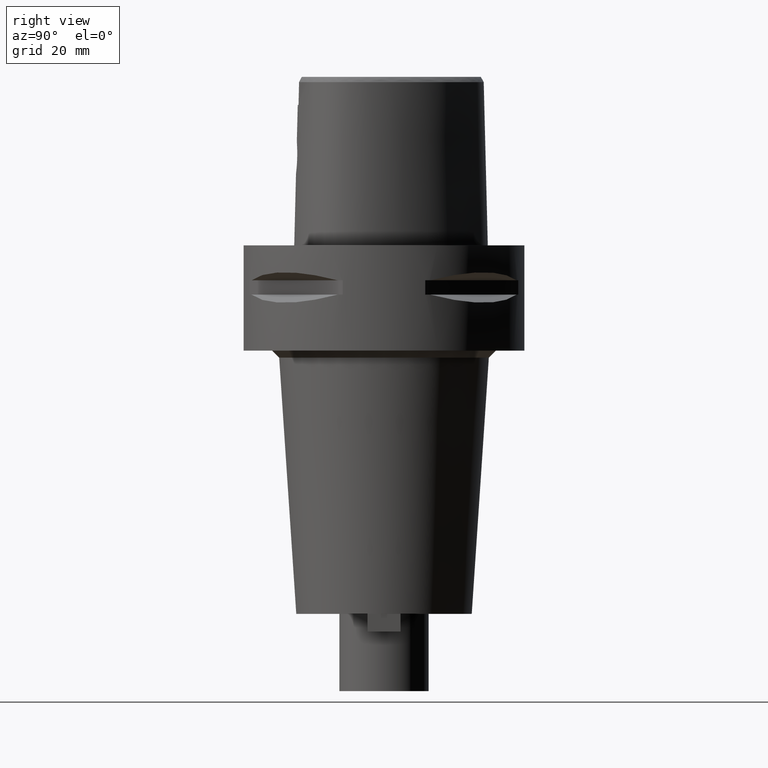
[diagram: clean part render]
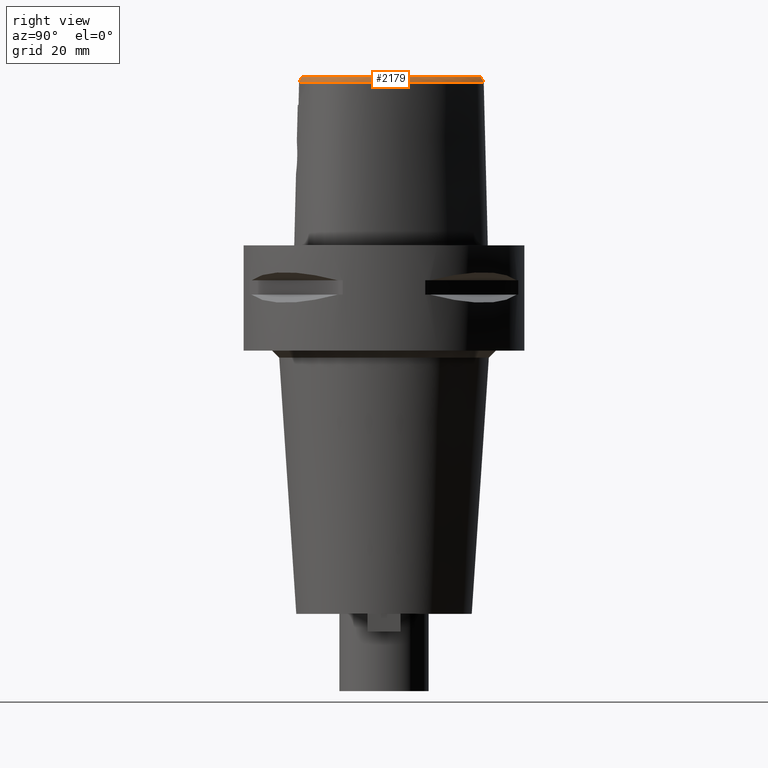
[diagram: same view with one face highlighted and labeled with its STEP entity id]
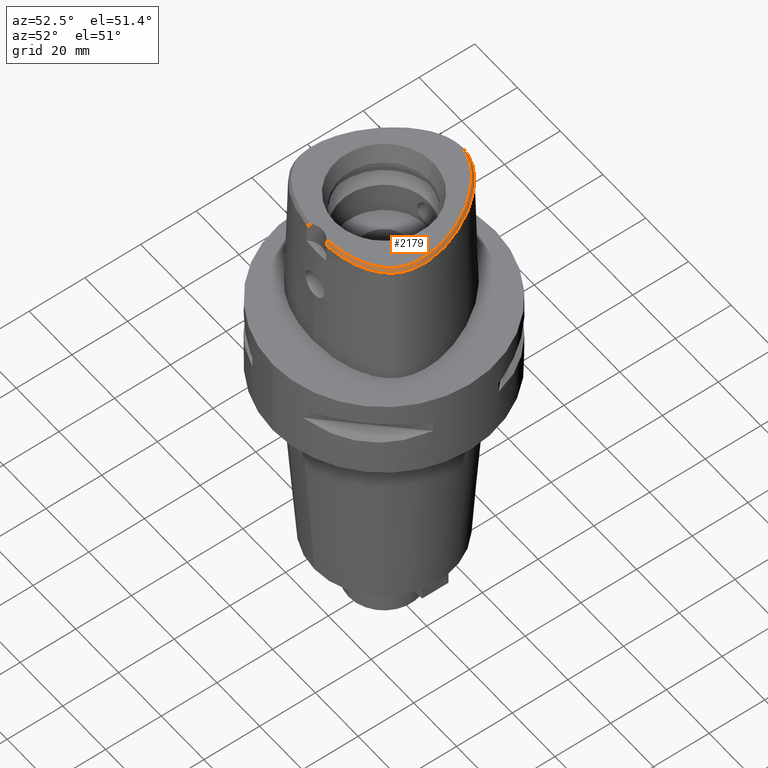
[diagram: same view with one face highlighted and labeled with its STEP entity id]
A machine part, right view. The second image highlights one B-rep face of the part: STEP entity #2179.
A second angle (auxiliary view) of the same face is appended — the face is thin or edge-on in the first view.
In plain terms, the highlighted face is a freeform B-spline surface patch.
Its self-contained STEP definition (entity closure, byte-faithful):
#65=CARTESIAN_POINT('',(-2.553408000999E-11,2.758331912251E1,4.8E1));
#70=CARTESIAN_POINT('',(-2.553408000999E-11,2.758331912251E1,4.8E1));
#71=CARTESIAN_POINT('',(4.308199591757E-1,2.758331912251E1,4.8E1));
#72=CARTESIAN_POINT('',(1.312581836386E0,2.753695819930E1,4.8E1));
#73=CARTESIAN_POINT('',(2.682052013070E0,2.732050191949E1,4.8E1));
#74=CARTESIAN_POINT('',(4.139025301734E0,2.693741277961E1,4.8E1));
#75=CARTESIAN_POINT('',(5.702132662746E0,2.635570228205E1,4.8E1));
#76=CARTESIAN_POINT('',(7.314111567124E0,2.557334069959E1,4.8E1));
#77=CARTESIAN_POINT('',(8.899897127761E0,2.462860894234E1,4.8E1));
#78=CARTESIAN_POINT('',(1.049350346487E1,2.350529025779E1,4.8E1));
#79=CARTESIAN_POINT('',(1.208714782739E1,2.220220708573E1,4.8E1));
#80=CARTESIAN_POINT('',(1.370807430618E1,2.068813656024E1,4.8E1));
#81=CARTESIAN_POINT('',(1.543422688583E1,1.885056713304E1,4.8E1));
#82=CARTESIAN_POINT('',(1.726772707219E1,1.661439195704E1,4.8E1));
#83=CARTESIAN_POINT('',(1.919908151861E1,1.387615070263E1,4.8E1));
#84=CARTESIAN_POINT('',(2.102577481567E1,1.081223261475E1,4.8E1));
#85=CARTESIAN_POINT('',(2.257155986932E1,7.689909778679E0,4.8E1));
#86=CARTESIAN_POINT('',(2.370836484248E1,4.888857081560E0,4.8E1));
#87=CARTESIAN_POINT('',(2.453018117142E1,2.390728156132E0,4.8E1));
#88=CARTESIAN_POINT('',(2.511007617668E1,1.379620702220E-1,4.8E1));
#89=CARTESIAN_POINT('',(2.550360072510E1,-1.955045901456E0,4.8E1));
#90=CARTESIAN_POINT('',(2.573370153040E1,-3.927409804008E0,4.8E1));
#91=CARTESIAN_POINT('',(2.581232238187E1,-5.799977111255E0,4.8E1));
#92=CARTESIAN_POINT('',(2.573966879691E1,-7.615151613845E0,4.8E1));
#93=CARTESIAN_POINT('',(2.551132514208E1,-9.325599270871E0,4.8E1));
#94=CARTESIAN_POINT('',(2.515342956191E1,-1.084492771808E1,4.8E1));
#95=CARTESIAN_POINT('',(2.468972595030E1,-1.219232098666E1,4.8E1));
#96=CARTESIAN_POINT('',(2.413025494716E1,-1.340053413374E1,4.8E1));
#97=CARTESIAN_POINT('',(2.346597589741E1,-1.451144789545E1,4.8E1));
#98=CARTESIAN_POINT('',(2.265398450606E1,-1.559540719476E1,4.8E1));
#99=CARTESIAN_POINT('',(2.166328740391E1,-1.666968978043E1,4.8E1));
#100=CARTESIAN_POINT('',(2.046665217620E1,-1.773324176249E1,4.8E1));
#101=CARTESIAN_POINT('',(1.903871263259E1,-1.877242211813E1,4.8E1));
#102=CARTESIAN_POINT('',(1.746616294721E1,-1.971268165060E1,4.8E1));
#103=CARTESIAN_POINT('',(1.576783714836E1,-2.055384398428E1,4.8E1));
#104=CARTESIAN_POINT('',(1.389651508096E1,-2.131702749288E1,4.8E1));
#105=CARTESIAN_POINT('',(1.183770415169E1,-2.199699532051E1,4.8E1));
#106=CARTESIAN_POINT('',(9.512960590606E0,-2.259887796156E1,4.8E1));
#107=CARTESIAN_POINT('',(6.838891179295E0,-2.310569037846E1,4.8E1));
#108=CARTESIAN_POINT('',(4.761191900107E0,-2.335214347967E1,4.8E1));
#109=CARTESIAN_POINT('',(3.652533226355E0,-2.343985283522E1,4.8E1));
#130=CARTESIAN_POINT('',(4.472216720977E0,-2.420009030094E1,4.652069014669E1));
#131=CARTESIAN_POINT('',(4.386385547011E0,-2.410412423164E1,4.670580948399E1));
#132=CARTESIAN_POINT('',(4.210543296964E0,-2.391997034542E1,4.706226501888E1));
#133=CARTESIAN_POINT('',(3.936996790985E0,-2.366730198003E1,4.755426598097E1));
#134=CARTESIAN_POINT('',(3.748173387403E0,-2.351323898357E1,4.785595189639E1));
#135=CARTESIAN_POINT('',(3.652533226355E0,-2.343985283522E1,4.8E1));
#140=CARTESIAN_POINT('',(-1.302368180590E-11,2.841206021535E1,
4.652071719451E1));
#141=CARTESIAN_POINT('',(4.645619623630E-1,2.841206021535E1,4.652071719450E1));
#142=CARTESIAN_POINT('',(1.392502708434E0,2.836337346288E1,4.652069269990E1));
#143=CARTESIAN_POINT('',(2.867520768382E0,2.813061406034E1,4.652071971733E1));
#144=CARTESIAN_POINT('',(4.418705802249E0,2.771997017901E1,4.652071663814E1));
#145=CARTESIAN_POINT('',(6.081525874425E0,2.709739880987E1,4.652072321715E1));
#146=CARTESIAN_POINT('',(7.809298435834E0,2.625044109545E1,4.652072243178E1));
#147=CARTESIAN_POINT('',(9.500538491540E0,2.522854108653E1,4.652071412197E1));
#148=CARTESIAN_POINT('',(1.118805322731E1,2.401948220279E1,4.652072261176E1));
#149=CARTESIAN_POINT('',(1.287219481621E1,2.261728156789E1,4.652071219837E1));
#150=CARTESIAN_POINT('',(1.459187582841E1,2.097731612638E1,4.652072230454E1));
#151=CARTESIAN_POINT('',(1.642654525592E1,1.897561835833E1,4.652070927404E1));
#152=CARTESIAN_POINT('',(1.837645554419E1,1.652254435811E1,4.652071899019E1));
#153=CARTESIAN_POINT('',(2.038503692951E1,1.356185686629E1,4.652071067698E1));
#154=CARTESIAN_POINT('',(2.222233942622E1,1.033005116791E1,4.652072937480E1));
#155=CARTESIAN_POINT('',(2.370916176152E1,7.156982117323E0,4.652068374576E1));
#156=CARTESIAN_POINT('',(2.478454783464E1,4.337662873146E0,4.652071733334E1));
#157=CARTESIAN_POINT('',(2.555741027749E1,1.803493345081E0,4.652071594027E1));
#158=CARTESIAN_POINT('',(2.609389676851E1,-5.073252425559E-1,4.652071690415E1));
#159=CARTESIAN_POINT('',(2.643898208359E1,-2.657292841212E0,4.652071531138E1));
#160=CARTESIAN_POINT('',(2.661562683198E1,-4.698641813486E0,4.652072592609E1));
#161=CARTESIAN_POINT('',(2.662930437472E1,-6.674399034016E0,4.652071331646E1));
#162=CARTESIAN_POINT('',(2.647088562175E1,-8.576416346751E0,4.652071929100E1));
#163=CARTESIAN_POINT('',(2.615694922710E1,-1.029143805928E1,4.652071482432E1));
#164=CARTESIAN_POINT('',(2.571696366411E1,-1.181546170948E1,4.652072314895E1));
#165=CARTESIAN_POINT('',(2.516704275048E1,-1.317922011349E1,4.652069754860E1));
#166=CARTESIAN_POINT('',(2.450914806127E1,-1.441901759393E1,4.652073254790E1));
#167=CARTESIAN_POINT('',(2.371577419028E1,-1.559216066951E1,4.652071091329E1));
#168=CARTESIAN_POINT('',(2.274797080795E1,-1.674581535720E1,4.652072388009E1));
#169=CARTESIAN_POINT('',(2.157714828554E1,-1.788362583840E1,4.652071935418E1));
#170=CARTESIAN_POINT('',(2.016761294318E1,-1.900457313678E1,4.652071782287E1));
#171=CARTESIAN_POINT('',(1.853608054765E1,-2.006334488107E1,4.652071674248E1));
#172=CARTESIAN_POINT('',(1.677914191169E1,-2.099877065793E1,4.652072007015E1));
#173=CARTESIAN_POINT('',(1.486255682303E1,-2.183761990880E1,4.652071537281E1));
#174=CARTESIAN_POINT('',(1.275852358118E1,-2.258416069392E1,4.652071952665E1));
#175=CARTESIAN_POINT('',(1.040614472909E1,-2.324250465365E1,4.652070533636E1));
#176=CARTESIAN_POINT('',(7.710151685436E0,-2.380512738152E1,4.652074681345E1));
#177=CARTESIAN_POINT('',(5.595748779639E0,-2.409253946985E1,4.652064871827E1));
#178=CARTESIAN_POINT('',(4.472216720977E0,-2.420009030094E1,4.652069014669E1));
#236=DIRECTION('',(-7.378115598628E-12,-4.887572309465E-1,8.724198353989E-1));
#237=VECTOR('',#236,1.695608863382E0);
#238=CARTESIAN_POINT('',(-1.302368180590E-11,2.841206021535E1,
4.652071719451E1));
#239=LINE('',#238,#237);
#1656=CARTESIAN_POINT('',(3.652533226356E0,-2.343985283522E1,4.8E1));
#1658=VERTEX_POINT('',#1656);
#1660=VERTEX_POINT('',#65);
#1665=VERTEX_POINT('',#130);
#1670=CARTESIAN_POINT('',(-1.302368180590E-11,2.841206021535E1,
4.652071719451E1));
#1671=VERTEX_POINT('',#1670);
#1894=CARTESIAN_POINT('',(2.876865472607E0,-2.337149101217E1,4.821924192607E1));
#1895=CARTESIAN_POINT('',(2.899078398782E0,-2.372893799313E1,4.757997728267E1));
#1896=CARTESIAN_POINT('',(2.921291324956E0,-2.408638497409E1,4.694071263928E1));
#1897=CARTESIAN_POINT('',(2.943504251131E0,-2.444383195504E1,4.630144799588E1));
#1898=CARTESIAN_POINT('',(3.133187733782E0,-2.335556125866E1,4.821924191161E1));
#1899=CARTESIAN_POINT('',(3.157406757150E0,-2.371288358660E1,4.757997731037E1));
#1900=CARTESIAN_POINT('',(3.181625780519E0,-2.407020591454E1,4.694071270913E1));
#1901=CARTESIAN_POINT('',(3.205844803888E0,-2.442752824248E1,4.630144810788E1));
#1902=CARTESIAN_POINT('',(3.431216515783E0,-2.333451357155E1,4.821924189874E1));
#1903=CARTESIAN_POINT('',(3.457780534314E0,-2.369167041996E1,4.757997733502E1));
#1904=CARTESIAN_POINT('',(3.484344552846E0,-2.404882726838E1,4.694071277130E1));
#1905=CARTESIAN_POINT('',(3.510908571377E0,-2.440598411679E1,4.630144820757E1));
#1906=CARTESIAN_POINT('',(4.347262932340E0,-2.326073767731E1,4.821924188083E1));
#1907=CARTESIAN_POINT('',(4.381087236337E0,-2.361730993973E1,4.757997736933E1));
#1908=CARTESIAN_POINT('',(4.414911540335E0,-2.397388220215E1,4.694071285784E1));
#1909=CARTESIAN_POINT('',(4.448735844332E0,-2.433045446457E1,4.630144834635E1));
#1910=CARTESIAN_POINT('',(5.613021169354E0,-2.313029656539E1,4.821924192790E1));
#1911=CARTESIAN_POINT('',(5.657046247524E0,-2.348582161817E1,4.757997727915E1));
#1912=CARTESIAN_POINT('',(5.701071325695E0,-2.384134667095E1,4.694071263040E1));
#1913=CARTESIAN_POINT('',(5.745096403866E0,-2.419687172374E1,4.630144798165E1));
#1914=CARTESIAN_POINT('',(7.375980070284E0,-2.287364570690E1,4.821924212338E1));
#1915=CARTESIAN_POINT('',(7.434885865289E0,-2.322701279293E1,4.757997690465E1));
#1916=CARTESIAN_POINT('',(7.493791660293E0,-2.358037987896E1,4.694071168591E1));
#1917=CARTESIAN_POINT('',(7.552697455297E0,-2.393374696498E1,4.630144646717E1));
#1918=CARTESIAN_POINT('',(9.054324431617E0,-2.255625573191E1,4.821924211439E1));
#1919=CARTESIAN_POINT('',(9.128217702130E0,-2.290679847186E1,4.757997692188E1));
#1920=CARTESIAN_POINT('',(9.202110972642E0,-2.325734121182E1,4.694071172937E1));
#1921=CARTESIAN_POINT('',(9.276004243155E0,-2.360788395178E1,4.630144653685E1));
#1922=CARTESIAN_POINT('',(1.063841157544E1,-2.218558097237E1,4.821924211499E1));
#1923=CARTESIAN_POINT('',(1.072738200012E1,-2.253260750696E1,4.757997692074E1));
#1924=CARTESIAN_POINT('',(1.081635242480E1,-2.287963404154E1,4.694071172649E1));
#1925=CARTESIAN_POINT('',(1.090532284948E1,-2.322666057612E1,4.630144653224E1));
#1926=CARTESIAN_POINT('',(1.212111347020E1,-2.176955447228E1,4.821924206553E1));
#1927=CARTESIAN_POINT('',(1.222527351137E1,-2.211233262496E1,4.757997701547E1));
#1928=CARTESIAN_POINT('',(1.232943355255E1,-2.245511077765E1,4.694071196541E1));
#1929=CARTESIAN_POINT('',(1.243359359372E1,-2.279788893034E1,4.630144691535E1));
#1930=CARTESIAN_POINT('',(1.349993485179E1,-2.131563305250E1,4.821924207040E1));
#1931=CARTESIAN_POINT('',(1.361935339704E1,-2.165340334127E1,4.757997700615E1));
#1932=CARTESIAN_POINT('',(1.373877194229E1,-2.199117363004E1,4.694071194191E1));
#1933=CARTESIAN_POINT('',(1.385819048755E1,-2.232894391880E1,4.630144687766E1));
#1934=CARTESIAN_POINT('',(1.477354171243E1,-2.083132226179E1,4.821924211509E1));
#1935=CARTESIAN_POINT('',(1.490829926046E1,-2.116327668184E1,4.757997692054E1));
#1936=CARTESIAN_POINT('',(1.504305680850E1,-2.149523110190E1,4.694071172600E1));
#1937=CARTESIAN_POINT('',(1.517781435654E1,-2.182718552196E1,4.630144653146E1));
#1938=CARTESIAN_POINT('',(1.594530244778E1,-2.032249761907E1,4.821924205661E1));
#1939=CARTESIAN_POINT('',(1.609541730429E1,-2.064780140472E1,4.757997703257E1));
#1940=CARTESIAN_POINT('',(1.624553216081E1,-2.097310519037E1,4.694071200853E1));
#1941=CARTESIAN_POINT('',(1.639564701732E1,-2.129840897602E1,4.630144698449E1));
#1942=CARTESIAN_POINT('',(1.701874935635E1,-1.979480077442E1,4.821924211382E1));
#1943=CARTESIAN_POINT('',(1.718420738125E1,-2.011258215142E1,4.757997692296E1));
#1944=CARTESIAN_POINT('',(1.734966540616E1,-2.043036352842E1,4.694071173210E1));
#1945=CARTESIAN_POINT('',(1.751512343106E1,-2.074814490542E1,4.630144654123E1));
#1946=CARTESIAN_POINT('',(1.799822484169E1,-1.925314343333E1,4.821924207755E1));
#1947=CARTESIAN_POINT('',(1.817898403924E1,-1.956248420904E1,4.757997699244E1));
#1948=CARTESIAN_POINT('',(1.835974323678E1,-1.987182498475E1,4.694071190734E1));
#1949=CARTESIAN_POINT('',(1.854050243433E1,-2.018116576046E1,4.630144682223E1));
#1950=CARTESIAN_POINT('',(1.889060235258E1,-1.870061011600E1,4.821924199625E1));
#1951=CARTESIAN_POINT('',(1.908651762080E1,-1.900058821514E1,4.757997714820E1));
#1952=CARTESIAN_POINT('',(1.928243288902E1,-1.930056631428E1,4.694071230016E1));
#1953=CARTESIAN_POINT('',(1.947834815724E1,-1.960054441342E1,4.630144745211E1));
#1954=CARTESIAN_POINT('',(1.970113372716E1,-1.814056768710E1,4.821924206169E1));
#1955=CARTESIAN_POINT('',(1.991201387568E1,-1.843022914435E1,4.757997702283E1));
#1956=CARTESIAN_POINT('',(2.012289402420E1,-1.871989060160E1,4.694071198397E1));
#1957=CARTESIAN_POINT('',(2.033377417272E1,-1.900955205885E1,4.630144694511E1));
#1958=CARTESIAN_POINT('',(2.043517118394E1,-1.757572592258E1,4.821924213720E1));
#1959=CARTESIAN_POINT('',(2.066076034804E1,-1.785409269154E1,4.757997687816E1));
#1960=CARTESIAN_POINT('',(2.088634951214E1,-1.813245946051E1,4.694071161912E1));
#1961=CARTESIAN_POINT('',(2.111193867623E1,-1.841082622947E1,4.630144636008E1));
#1962=CARTESIAN_POINT('',(2.109916706154E1,-1.700724434365E1,4.821924213646E1));
#1963=CARTESIAN_POINT('',(2.133910656843E1,-1.727334886298E1,4.757997687958E1));
#1964=CARTESIAN_POINT('',(2.157904607532E1,-1.753945338231E1,4.694071162271E1));
#1965=CARTESIAN_POINT('',(2.181898558221E1,-1.780555790163E1,4.630144636583E1));
#1966=CARTESIAN_POINT('',(2.169890433641E1,-1.643590249734E1,4.821924212445E1));
#1967=CARTESIAN_POINT('',(2.195275526367E1,-1.668877861367E1,4.757997690259E1));
#1968=CARTESIAN_POINT('',(2.220660619094E1,-1.694165473E1,4.694071168072E1));
#1969=CARTESIAN_POINT('',(2.246045711821E1,-1.719453084633E1,4.630144645886E1));
#1970=CARTESIAN_POINT('',(2.223935527357E1,-1.586234623381E1,4.821924210205E1));
#1971=CARTESIAN_POINT('',(2.250659044937E1,-1.610104201791E1,4.757997694553E1));
#1972=CARTESIAN_POINT('',(2.277382562518E1,-1.633973780200E1,4.694071178901E1));
#1973=CARTESIAN_POINT('',(2.304106080099E1,-1.657843358610E1,4.630144663249E1));
#1974=CARTESIAN_POINT('',(2.272569588475E1,-1.528605546547E1,4.821924204602E1));
#1975=CARTESIAN_POINT('',(2.300569031208E1,-1.550965506923E1,4.757997705287E1));
#1976=CARTESIAN_POINT('',(2.328568473940E1,-1.573325467300E1,4.694071205972E1));
#1977=CARTESIAN_POINT('',(2.356567916673E1,-1.595685427677E1,4.630144706657E1));
#1978=CARTESIAN_POINT('',(2.316209855810E1,-1.470661306729E1,4.821924213456E1));
#1979=CARTESIAN_POINT('',(2.345413060733E1,-1.491425055732E1,4.757997688324E1));
#1980=CARTESIAN_POINT('',(2.374616265656E1,-1.512188804735E1,4.694071163191E1));
#1981=CARTESIAN_POINT('',(2.403819470579E1,-1.532952553737E1,4.630144638059E1));
#1982=CARTESIAN_POINT('',(2.355140410734E1,-1.412451654939E1,4.821924214834E1));
#1983=CARTESIAN_POINT('',(2.385467985486E1,-1.431536853290E1,4.757997685684E1));
#1984=CARTESIAN_POINT('',(2.415795560238E1,-1.450622051641E1,4.694071156533E1));
#1985=CARTESIAN_POINT('',(2.446123134990E1,-1.469707249992E1,4.630144627382E1));
#1986=CARTESIAN_POINT('',(2.389949282158E1,-1.353450441815E1,4.821924208794E1));
#1987=CARTESIAN_POINT('',(2.421319718401E1,-1.370768290853E1,4.757997697255E1));
#1988=CARTESIAN_POINT('',(2.452690154644E1,-1.388086139891E1,4.694071185716E1));
#1989=CARTESIAN_POINT('',(2.484060590887E1,-1.405403988929E1,4.630144674177E1));
#1990=CARTESIAN_POINT('',(2.421718278414E1,-1.291889838151E1,4.821924218176E1));
#1991=CARTESIAN_POINT('',(2.454017337214E1,-1.307405708076E1,4.757997679282E1));
#1992=CARTESIAN_POINT('',(2.486316396014E1,-1.322921578001E1,4.694071140387E1));
#1993=CARTESIAN_POINT('',(2.518615454814E1,-1.338437447926E1,4.630144601493E1));
#1994=CARTESIAN_POINT('',(2.450962268473E1,-1.226455699837E1,4.821924204936E1));
#1995=CARTESIAN_POINT('',(2.484079114997E1,-1.240138576770E1,4.757997704645E1));
#1996=CARTESIAN_POINT('',(2.517195961520E1,-1.253821453702E1,4.694071204354E1));
#1997=CARTESIAN_POINT('',(2.550312808043E1,-1.267504330635E1,4.630144704062E1));
#1998=CARTESIAN_POINT('',(2.477496253345E1,-1.156934535207E1,4.821924208235E1));
#1999=CARTESIAN_POINT('',(2.511319366649E1,-1.168762961672E1,4.757997698324E1));
#2000=CARTESIAN_POINT('',(2.545142479954E1,-1.180591388137E1,4.694071188413E1));
#2001=CARTESIAN_POINT('',(2.578965593259E1,-1.192419814602E1,4.630144678502E1));
#2002=CARTESIAN_POINT('',(2.501145273104E1,-1.083010996763E1,4.821924212060E1));
#2003=CARTESIAN_POINT('',(2.535564010322E1,-1.092972414145E1,4.757997690998E1));
#2004=CARTESIAN_POINT('',(2.569982747540E1,-1.102933831527E1,4.694071169936E1));
#2005=CARTESIAN_POINT('',(2.604401484758E1,-1.112895248909E1,4.630144648874E1));
#2006=CARTESIAN_POINT('',(2.521716726115E1,-1.004223734416E1,4.821924213293E1));
#2007=CARTESIAN_POINT('',(2.556621300495E1,-1.012317544606E1,4.757997688637E1));
#2008=CARTESIAN_POINT('',(2.591525874874E1,-1.020411354795E1,4.694071163981E1));
#2009=CARTESIAN_POINT('',(2.626430449253E1,-1.028505164985E1,4.630144639325E1));
#2010=CARTESIAN_POINT('',(2.538936957784E1,-9.201410958426E0,4.821924214049E1));
#2011=CARTESIAN_POINT('',(2.574220689498E1,-9.263746756797E0,4.757997687188E1));
#2012=CARTESIAN_POINT('',(2.609504421212E1,-9.326082555169E0,4.694071160328E1));
#2013=CARTESIAN_POINT('',(2.644788152927E1,-9.388418353541E0,4.630144633467E1));
#2014=CARTESIAN_POINT('',(2.552463080862E1,-8.303468521901E0,4.821924209795E1));
#2015=CARTESIAN_POINT('',(2.588022882300E1,-8.347351146916E0,4.757997695338E1));
#2016=CARTESIAN_POINT('',(2.623582683737E1,-8.391233771930E0,4.694071180880E1));
#2017=CARTESIAN_POINT('',(2.659142485174E1,-8.435116396944E0,4.630144666423E1));
#2018=CARTESIAN_POINT('',(2.561898739748E1,-7.343327719357E0,4.821924200312E1));
#2019=CARTESIAN_POINT('',(2.597635570665E1,-7.368999211129E0,4.757997713504E1));
#2020=CARTESIAN_POINT('',(2.633372401582E1,-7.394670702901E0,4.694071226696E1));
#2021=CARTESIAN_POINT('',(2.669109232500E1,-7.420342194673E0,4.630144739888E1));
#2022=CARTESIAN_POINT('',(2.566767388532E1,-6.316695267040E0,4.821924203629E1));
#2023=CARTESIAN_POINT('',(2.602587327825E1,-6.324450596201E0,4.757997707152E1));
#2024=CARTESIAN_POINT('',(2.638407267118E1,-6.332205925362E0,4.694071210674E1));
#2025=CARTESIAN_POINT('',(2.674227206410E1,-6.339961254523E0,4.630144714197E1));
#2026=CARTESIAN_POINT('',(2.566528228613E1,-5.221507390935E0,4.821924212833E1));
#2027=CARTESIAN_POINT('',(2.602342482034E1,-5.211675231403E0,4.757997689519E1));
#2028=CARTESIAN_POINT('',(2.638156735455E1,-5.201843071872E0,4.694071166205E1));
#2029=CARTESIAN_POINT('',(2.673970988875E1,-5.192010912340E0,4.630144642891E1));
#2030=CARTESIAN_POINT('',(2.560593705511E1,-4.053412830070E0,4.821924206520E1));
#2031=CARTESIAN_POINT('',(2.596318791804E1,-4.026390360344E0,4.757997701613E1));
#2032=CARTESIAN_POINT('',(2.632043878098E1,-3.999367890617E0,4.694071196707E1));
#2033=CARTESIAN_POINT('',(2.667768964392E1,-3.972345420891E0,4.630144691800E1));
#2034=CARTESIAN_POINT('',(2.548321244396E1,-2.809210210902E0,4.821924209340E1));
#2035=CARTESIAN_POINT('',(2.583879244850E1,-2.765421517010E0,4.757997696207E1));
#2036=CARTESIAN_POINT('',(2.619437245304E1,-2.721632823118E0,4.694071183074E1));
#2037=CARTESIAN_POINT('',(2.654995245758E1,-2.677844129226E0,4.630144669942E1));
#2038=CARTESIAN_POINT('',(2.529058828508E1,-1.489393261030E0,4.821924209847E1));
#2039=CARTESIAN_POINT('',(2.564376626027E1,-1.429258927453E0,4.757997695237E1));
#2040=CARTESIAN_POINT('',(2.599694423546E1,-1.369124593877E0,4.694071180627E1));
#2041=CARTESIAN_POINT('',(2.635012221066E1,-1.308990260300E0,4.630144666017E1));
#2042=CARTESIAN_POINT('',(2.502122501002E1,-9.322445310877E-2,
4.821924204219E1));
#2043=CARTESIAN_POINT('',(2.537132535793E1,-1.721826313750E-2,
4.757997706019E1));
#2044=CARTESIAN_POINT('',(2.572142570584E1,5.878792683378E-2,4.694071207819E1));
#2045=CARTESIAN_POINT('',(2.607152605375E1,1.347941168051E-1,4.630144709619E1));
#2046=CARTESIAN_POINT('',(2.466900861618E1,1.375691822546E0,4.821924211156E1));
#2047=CARTESIAN_POINT('',(2.501539724529E1,1.467119619574E0,4.757997692728E1));
#2048=CARTESIAN_POINT('',(2.536178587441E1,1.558547416603E0,4.694071174300E1));
#2049=CARTESIAN_POINT('',(2.570817450353E1,1.649975213631E0,4.630144655873E1));
#2050=CARTESIAN_POINT('',(2.422847598668E1,2.911839575817E0,4.821924211691E1));
#2051=CARTESIAN_POINT('',(2.457055936768E1,3.018236103311E0,4.757997691706E1));
#2052=CARTESIAN_POINT('',(2.491264274869E1,3.124632630805E0,4.694071171720E1));
#2053=CARTESIAN_POINT('',(2.525472612970E1,3.231029158298E0,4.630144651735E1));
#2054=CARTESIAN_POINT('',(2.369551137929E1,4.506925707624E0,4.821924215612E1));
#2055=CARTESIAN_POINT('',(2.403273000701E1,4.627849213183E0,4.757997684193E1));
#2056=CARTESIAN_POINT('',(2.436994863473E1,4.748772718743E0,4.694071152774E1));
#2057=CARTESIAN_POINT('',(2.470716726245E1,4.869696224303E0,4.630144621356E1));
#2058=CARTESIAN_POINT('',(2.306808550390E1,6.148846083332E0,4.821924196395E1));
#2059=CARTESIAN_POINT('',(2.339990239029E1,6.283881245111E0,4.757997721008E1));
#2060=CARTESIAN_POINT('',(2.373171927668E1,6.418916406889E0,4.694071245622E1));
#2061=CARTESIAN_POINT('',(2.406353616307E1,6.553951568668E0,4.630144770235E1));
#2062=CARTESIAN_POINT('',(2.234482787027E1,7.826580075517E0,4.821924178859E1));
#2063=CARTESIAN_POINT('',(2.267072928228E1,7.975319650892E0,4.757997754604E1));
#2064=CARTESIAN_POINT('',(2.299663069429E1,8.124059226266E0,4.694071330349E1));
#2065=CARTESIAN_POINT('',(2.332253210631E1,8.272798801641E0,4.630144906094E1));
#2066=CARTESIAN_POINT('',(2.153233718313E1,9.514525611799E0,4.821924185105E1));
#2067=CARTESIAN_POINT('',(2.185183543122E1,9.676557535667E0,4.757997742638E1));
#2068=CARTESIAN_POINT('',(2.217133367931E1,9.838589459536E0,4.694071300171E1));
#2069=CARTESIAN_POINT('',(2.249083192740E1,1.000062138340E1,4.630144857704E1));
#2070=CARTESIAN_POINT('',(2.064120107450E1,1.118652790183E1,4.821924210217E1));
#2071=CARTESIAN_POINT('',(2.095383382978E1,1.136143648253E1,4.757997694529E1));
#2072=CARTESIAN_POINT('',(2.126646658505E1,1.153634506322E1,4.694071178841E1));
#2073=CARTESIAN_POINT('',(2.157909934032E1,1.171125364392E1,4.630144663154E1));
#2074=CARTESIAN_POINT('',(1.967996845094E1,1.282567286951E1,4.821924211058E1));
#2075=CARTESIAN_POINT('',(1.998524829607E1,1.301312087875E1,4.757997692916E1));
#2076=CARTESIAN_POINT('',(2.029052814121E1,1.320056888799E1,4.694071174774E1));
#2077=CARTESIAN_POINT('',(2.059580798634E1,1.338801689722E1,4.630144656633E1));
#2078=CARTESIAN_POINT('',(1.865853472183E1,1.441514772956E1,4.821924200806E1));
#2079=CARTESIAN_POINT('',(1.895590108300E1,1.461491592127E1,4.757997712560E1));
#2080=CARTESIAN_POINT('',(1.925326744417E1,1.481468411298E1,4.694071224315E1));
#2081=CARTESIAN_POINT('',(1.955063380533E1,1.501445230468E1,4.630144736069E1));
#2082=CARTESIAN_POINT('',(1.758946308034E1,1.593691307469E1,4.821924205055E1));
#2083=CARTESIAN_POINT('',(1.787831885177E1,1.614880466301E1,4.757997704419E1));
#2084=CARTESIAN_POINT('',(1.816717462319E1,1.636069625133E1,4.694071203782E1));
#2085=CARTESIAN_POINT('',(1.845603039462E1,1.657258783965E1,4.630144703146E1));
#2086=CARTESIAN_POINT('',(1.649180748737E1,1.736847294431E1,4.821924218494E1));
#2087=CARTESIAN_POINT('',(1.677155545168E1,1.759225567273E1,4.757997678672E1));
#2088=CARTESIAN_POINT('',(1.705130341599E1,1.781603840115E1,4.694071138850E1));
#2089=CARTESIAN_POINT('',(1.733105138030E1,1.803982112957E1,4.630144599027E1));
#2090=CARTESIAN_POINT('',(1.538051284397E1,1.869773866121E1,4.821924199814E1));
#2091=CARTESIAN_POINT('',(1.565052316155E1,1.893318323116E1,4.757997714459E1));
#2092=CARTESIAN_POINT('',(1.592053347913E1,1.916862780111E1,4.694071229103E1));
#2093=CARTESIAN_POINT('',(1.619054379670E1,1.940407237107E1,4.630144743747E1));
#2094=CARTESIAN_POINT('',(1.426528257948E1,1.992139191885E1,4.821924163982E1));
#2095=CARTESIAN_POINT('',(1.452493081680E1,2.016822147180E1,4.757997783105E1));
#2096=CARTESIAN_POINT('',(1.478457905412E1,2.041505102475E1,4.694071402227E1));
#2097=CARTESIAN_POINT('',(1.504422729145E1,2.066188057769E1,4.630145021350E1));
#2098=CARTESIAN_POINT('',(1.315741294507E1,2.103571905879E1,4.821924157127E1));
#2099=CARTESIAN_POINT('',(1.340602817088E1,2.129366383086E1,4.757997796237E1));
#2100=CARTESIAN_POINT('',(1.365464339669E1,2.155160860292E1,4.694071435348E1));
#2101=CARTESIAN_POINT('',(1.390325862250E1,2.180955337499E1,4.630145074458E1));
#2102=CARTESIAN_POINT('',(1.206687506148E1,2.203969830364E1,4.821924180174E1));
#2103=CARTESIAN_POINT('',(1.230376044200E1,2.230846146844E1,4.757997752083E1));
#2104=CARTESIAN_POINT('',(1.254064582252E1,2.257722463323E1,4.694071323992E1));
#2105=CARTESIAN_POINT('',(1.277753120303E1,2.284598779802E1,4.630144895902E1));
#2106=CARTESIAN_POINT('',(1.100221656898E1,2.293474270969E1,4.821924214007E1));
#2107=CARTESIAN_POINT('',(1.122664792350E1,2.321399649481E1,4.757997687268E1));
#2108=CARTESIAN_POINT('',(1.145107927801E1,2.349325027993E1,4.694071160529E1));
#2109=CARTESIAN_POINT('',(1.167551063253E1,2.377250406504E1,4.630144633790E1));
#2110=CARTESIAN_POINT('',(9.966456043536E0,2.372719399373E1,4.821924214026E1));
#2111=CARTESIAN_POINT('',(1.017768566336E1,2.401656899659E1,4.757997687233E1));
#2112=CARTESIAN_POINT('',(1.038891528318E1,2.430594399945E1,4.694071160439E1));
#2113=CARTESIAN_POINT('',(1.060014490300E1,2.459531900230E1,4.630144633646E1));
#2114=CARTESIAN_POINT('',(8.961403702610E0,2.442393522824E1,4.821924210996E1));
#2115=CARTESIAN_POINT('',(9.158698949881E0,2.472299114845E1,4.757997693037E1));
#2116=CARTESIAN_POINT('',(9.355994197153E0,2.502204706866E1,4.694071175077E1));
#2117=CARTESIAN_POINT('',(9.553289444425E0,2.532110298888E1,4.630144657118E1));
#2118=CARTESIAN_POINT('',(7.990845018682E0,2.503007981945E1,4.821924210303E1));
#2119=CARTESIAN_POINT('',(8.173438879593E0,2.533833885544E1,4.757997694363E1));
#2120=CARTESIAN_POINT('',(8.356032740503E0,2.564659789143E1,4.694071178422E1));
#2121=CARTESIAN_POINT('',(8.538626601414E0,2.595485692742E1,4.630144662482E1));
#2122=CARTESIAN_POINT('',(7.054785043371E0,2.555288065267E1,4.821924202195E1));
#2123=CARTESIAN_POINT('',(7.221937047779E0,2.586978515864E1,4.757997709896E1));
#2124=CARTESIAN_POINT('',(7.389089052186E0,2.618668966461E1,4.694071217597E1));
#2125=CARTESIAN_POINT('',(7.556241056594E0,2.650359417059E1,4.630144725299E1));
#2126=CARTESIAN_POINT('',(6.153026696044E0,2.599903844367E1,4.821924205714E1));
#2127=CARTESIAN_POINT('',(6.304003090662E0,2.632396744086E1,4.757997703155E1));
#2128=CARTESIAN_POINT('',(6.454979485280E0,2.664889643805E1,4.694071200596E1));
#2129=CARTESIAN_POINT('',(6.605955879898E0,2.697382543524E1,4.630144698038E1));
#2130=CARTESIAN_POINT('',(5.286000392658E0,2.637437858638E1,4.821924212258E1));
#2131=CARTESIAN_POINT('',(5.420073874828E0,2.670664565946E1,4.757997690618E1));
#2132=CARTESIAN_POINT('',(5.554147356997E0,2.703891273255E1,4.694071168978E1));
#2133=CARTESIAN_POINT('',(5.688220839167E0,2.737117980564E1,4.630144647338E1));
#2134=CARTESIAN_POINT('',(4.451345175306E0,2.668537693666E1,4.821924206033E1));
#2135=CARTESIAN_POINT('',(4.567840820645E0,2.702421314195E1,4.757997702545E1));
#2136=CARTESIAN_POINT('',(4.684336465984E0,2.736304934724E1,4.694071199056E1));
#2137=CARTESIAN_POINT('',(4.800832111323E0,2.770188555253E1,4.630144695568E1));
#2138=CARTESIAN_POINT('',(3.646589849436E0,2.693774165037E1,4.821924202603E1));
#2139=CARTESIAN_POINT('',(3.744875897781E0,2.728230674080E1,4.757997709115E1));
#2140=CARTESIAN_POINT('',(3.843161946125E0,2.762687183123E1,4.694071215626E1));
#2141=CARTESIAN_POINT('',(3.941447994469E0,2.797143692167E1,4.630144722138E1));
#2142=CARTESIAN_POINT('',(2.870128189956E0,2.713617760829E1,4.821924206976E1));
#2143=CARTESIAN_POINT('',(2.949627566128E0,2.748556112562E1,4.757997700737E1));
#2144=CARTESIAN_POINT('',(3.029126942299E0,2.783494464295E1,4.694071194497E1));
#2145=CARTESIAN_POINT('',(3.108626318471E0,2.818432816029E1,4.630144688258E1));
#2146=CARTESIAN_POINT('',(2.119937537296E0,2.728489285938E1,4.821924218201E1));
#2147=CARTESIAN_POINT('',(2.180137964692E0,2.763811898443E1,4.757997679234E1));
#2148=CARTESIAN_POINT('',(2.240338392087E0,2.799134510948E1,4.694071140267E1));
#2149=CARTESIAN_POINT('',(2.300538819483E0,2.834457123453E1,4.630144601300E1));
#2150=CARTESIAN_POINT('',(1.394063228861E0,2.738760501478E1,4.821924221624E1));
#2151=CARTESIAN_POINT('',(1.434519224315E0,2.774363697452E1,4.757997672675E1));
#2152=CARTESIAN_POINT('',(1.474975219768E0,2.809966893426E1,4.694071123727E1));
#2153=CARTESIAN_POINT('',(1.515431215221E0,2.845570089401E1,4.630144574778E1));
#2154=CARTESIAN_POINT('',(6.867489681539E-1,2.744750609825E1,4.821924215090E1));
#2155=CARTESIAN_POINT('',(7.071446154513E-1,2.780525348348E1,4.757997685192E1));
#2156=CARTESIAN_POINT('',(7.275402627487E-1,2.816300086870E1,4.694071155293E1));
#2157=CARTESIAN_POINT('',(7.479359100461E-1,2.852074825392E1,4.630144625395E1));
#2158=CARTESIAN_POINT('',(-1.551530778737E-2,2.746748504458E1,
4.821924207318E1));
#2159=CARTESIAN_POINT('',(-1.606439124480E-2,2.782583116986E1,
4.757997700081E1));
#2160=CARTESIAN_POINT('',(-1.661347470223E-2,2.818417729514E1,
4.694071192843E1));
#2161=CARTESIAN_POINT('',(-1.716255815966E-2,2.854252342042E1,
4.630144685605E1));
#2162=CARTESIAN_POINT('',(-4.982642154799E-1,2.745296316994E1,
4.821924212968E1));
#2163=CARTESIAN_POINT('',(-5.128386440205E-1,2.781087409569E1,
4.757997689259E1));
#2164=CARTESIAN_POINT('',(-5.274130725610E-1,2.816878502144E1,
4.694071165550E1));
#2165=CARTESIAN_POINT('',(-5.419875011016E-1,2.852669594720E1,
4.630144641841E1));
#2166=CARTESIAN_POINT('',(-7.581427718215E-1,2.743820807768E1,
4.821924222197E1));
#2167=CARTESIAN_POINT('',(-7.798515156597E-1,2.779566022309E1,
4.757997671577E1));
#2168=CARTESIAN_POINT('',(-8.015602594980E-1,2.815311236851E1,
4.694071120958E1));
#2169=CARTESIAN_POINT('',(-8.232690033363E-1,2.851056451392E1,
4.630144570338E1));
#2170=B_SPLINE_SURFACE_WITH_KNOTS('',3,3,((#1894,#1895,#1896,#1897),(#1898,
#1899,#1900,#1901),(#1902,#1903,#1904,#1905),(#1906,#1907,#1908,#1909),(#1910,
#1911,#1912,#1913),(#1914,#1915,#1916,#1917),(#1918,#1919,#1920,#1921),(#1922,
#1923,#1924,#1925),(#1926,#1927,#1928,#1929),(#1930,#1931,#1932,#1933),(#1934,
#1935,#1936,#1937),(#1938,#1939,#1940,#1941),(#1942,#1943,#1944,#1945),(#1946,
#1947,#1948,#1949),(#1950,#1951,#1952,#1953),(#1954,#1955,#1956,#1957),(#1958,
#1959,#1960,#1961),(#1962,#1963,#1964,#1965),(#1966,#1967,#1968,#1969),(#1970,
#1971,#1972,#1973),(#1974,#1975,#1976,#1977),(#1978,#1979,#1980,#1981),(#1982,
#1983,#1984,#1985),(#1986,#1987,#1988,#1989),(#1990,#1991,#1992,#1993),(#1994,
#1995,#1996,#1997),(#1998,#1999,#2000,#2001),(#2002,#2003,#2004,#2005),(#2006,
#2007,#2008,#2009),(#2010,#2011,#2012,#2013),(#2014,#2015,#2016,#2017),(#2018,
#2019,#2020,#2021),(#2022,#2023,#2024,#2025),(#2026,#2027,#2028,#2029),(#2030,
#2031,#2032,#2033),(#2034,#2035,#2036,#2037),(#2038,#2039,#2040,#2041),(#2042,
#2043,#2044,#2045),(#2046,#2047,#2048,#2049),(#2050,#2051,#2052,#2053),(#2054,
#2055,#2056,#2057),(#2058,#2059,#2060,#2061),(#2062,#2063,#2064,#2065),(#2066,
#2067,#2068,#2069),(#2070,#2071,#2072,#2073),(#2074,#2075,#2076,#2077),(#2078,
#2079,#2080,#2081),(#2082,#2083,#2084,#2085),(#2086,#2087,#2088,#2089),(#2090,
#2091,#2092,#2093),(#2094,#2095,#2096,#2097),(#2098,#2099,#2100,#2101),(#2102,
#2103,#2104,#2105),(#2106,#2107,#2108,#2109),(#2110,#2111,#2112,#2113),(#2114,
#2115,#2116,#2117),(#2118,#2119,#2120,#2121),(#2122,#2123,#2124,#2125),(#2126,
#2127,#2128,#2129),(#2130,#2131,#2132,#2133),(#2134,#2135,#2136,#2137),(#2138,
#2139,#2140,#2141),(#2142,#2143,#2144,#2145),(#2146,#2147,#2148,#2149),(#2150,
#2151,#2152,#2153),(#2154,#2155,#2156,#2157),(#2158,#2159,#2160,#2161),(#2162,
#2163,#2164,#2165),(#2166,#2167,#2168,#2169)),.UNSPECIFIED.,.F.,.F.,.F.,(4,1,1,
1,1,1,1,1,1,1,1,1,1,1,1,1,1,1,1,1,1,1,1,1,1,1,1,1,1,1,1,1,1,1,1,1,1,1,1,1,1,1,1,
1,1,1,1,1,1,1,1,1,1,1,1,1,1,1,1,1,1,1,1,1,1,1,4),(4,4),(-6.501344654137E-3,0.E0,
1.084806278983E-3,1.694060300471E-2,3.279639973042E-2,4.865219645615E-2,
6.450799318186E-2,8.036378990757E-2,9.621958663328E-2,1.120753833590E-1,
1.279311800848E-1,1.437869768105E-1,1.596427735362E-1,1.754985702619E-1,
1.913543669876E-1,2.072101637133E-1,2.230659604390E-1,2.389217571648E-1,
2.547775538905E-1,2.706333506162E-1,2.864891473419E-1,3.023449440676E-1,
3.182007407933E-1,3.340565375191E-1,3.499123342448E-1,3.657681309706E-1,
3.816239276963E-1,3.974797244220E-1,4.133355211477E-1,4.291913178734E-1,
4.450471145992E-1,4.609029113249E-1,4.767587080506E-1,4.926145047763E-1,
5.084703015020E-1,5.243260982277E-1,5.401818949535E-1,5.560376916792E-1,
5.718934884049E-1,5.877492851306E-1,6.036050818563E-1,6.194608785820E-1,
6.353166753077E-1,6.511724720335E-1,6.670282687592E-1,6.828840654849E-1,
6.987398622106E-1,7.145956589363E-1,7.304514556620E-1,7.463072523879E-1,
7.621630491136E-1,7.780188458393E-1,7.938746425650E-1,8.097304392907E-1,
8.255862360164E-1,8.414420327421E-1,8.572978294679E-1,8.731536261936E-1,
8.890094229193E-1,9.048652196450E-1,9.207210163707E-1,9.365768130964E-1,
9.524326098222E-1,9.682884065479E-1,9.841442032736E-1,1.E0,1.017074182963E0),(
-1.232745428188E-1,1.123274542814E0),.UNSPECIFIED.);
#2171=ORIENTED_EDGE('',*,*,#1881,.T.);
#2172=ORIENTED_EDGE('',*,*,#1864,.F.);
#2174=ORIENTED_EDGE('',*,*,#2173,.F.);
#2176=ORIENTED_EDGE('',*,*,#2175,.T.);
#2177=EDGE_LOOP('',(#2171,#2172,#2174,#2176));
#2178=FACE_OUTER_BOUND('',#2177,.F.);
#110=B_SPLINE_CURVE_WITH_KNOTS('',3,(#70,#71,#72,#73,#74,#75,#76,#77,#78,#79,
#80,#81,#82,#83,#84,#85,#86,#87,#88,#89,#90,#91,#92,#93,#94,#95,#96,#97,#98,#99,
#100,#101,#102,#103,#104,#105,#106,#107,#108,#109),.UNSPECIFIED.,.F.,.F.,(4,1,1,
1,1,1,1,1,1,1,1,1,1,1,1,1,1,1,1,1,1,1,1,1,1,1,1,1,1,1,1,1,1,1,1,1,1,4),(0.E0,
2.702702702703E-2,5.405405405405E-2,8.108108108108E-2,1.081081081081E-1,
1.351351351351E-1,1.621621621622E-1,1.891891891892E-1,2.162162162162E-1,
2.432432432432E-1,2.702702702703E-1,2.972972972973E-1,3.243243243243E-1,
3.513513513514E-1,3.783783783784E-1,4.054054054054E-1,4.324324324324E-1,
4.594594594595E-1,4.864864864865E-1,5.135135135135E-1,5.405405405405E-1,
5.675675675676E-1,5.945945945946E-1,6.216216216216E-1,6.486486486486E-1,
6.756756756757E-1,7.027027027027E-1,7.297297297297E-1,7.567567567568E-1,
7.837837837838E-1,8.108108108108E-1,8.378378378378E-1,8.648648648649E-1,
8.918918918919E-1,9.189189189189E-1,9.459459459459E-1,9.729729729730E-1,1.E0),
.UNSPECIFIED.);
#136=B_SPLINE_CURVE_WITH_KNOTS('',3,(#130,#131,#132,#133,#134,#135),
.UNSPECIFIED.,.F.,.F.,(4,1,1,4),(0.E0,3.333333333333E-1,6.666666666667E-1,1.E0),
.UNSPECIFIED.);
#179=B_SPLINE_CURVE_WITH_KNOTS('',3,(#140,#141,#142,#143,#144,#145,#146,#147,
#148,#149,#150,#151,#152,#153,#154,#155,#156,#157,#158,#159,#160,#161,#162,#163,
#164,#165,#166,#167,#168,#169,#170,#171,#172,#173,#174,#175,#176,#177,#178),
.UNSPECIFIED.,.F.,.F.,(4,1,1,1,1,1,1,1,1,1,1,1,1,1,1,1,1,1,1,1,1,1,1,1,1,1,1,1,
1,1,1,1,1,1,1,1,4),(0.E0,2.777777777778E-2,5.555555555556E-2,8.333333333333E-2,
1.111111111111E-1,1.388888888889E-1,1.666666666667E-1,1.944444444444E-1,
2.222222222222E-1,2.5E-1,2.777777777778E-1,3.055555555556E-1,3.333333333333E-1,
3.611111111111E-1,3.888888888889E-1,4.166666666667E-1,4.444444444444E-1,
4.722222222222E-1,5.E-1,5.277777777778E-1,5.555555555556E-1,5.833333333333E-1,
6.111111111111E-1,6.388888888889E-1,6.666666666667E-1,6.944444444444E-1,
7.222222222222E-1,7.5E-1,7.777777777778E-1,8.055555555556E-1,8.333333333333E-1,
8.611111111111E-1,8.888888888889E-1,9.166666666667E-1,9.444444444444E-1,
9.722222222222E-1,1.E0),.UNSPECIFIED.);
#1864=EDGE_CURVE('',#1660,#1658,#110,.T.);
#1881=EDGE_CURVE('',#1665,#1658,#136,.T.);
#2173=EDGE_CURVE('',#1671,#1660,#239,.T.);
#2175=EDGE_CURVE('',#1671,#1665,#179,.T.);
#2179=ADVANCED_FACE('',(#2178),#2170,.F.);